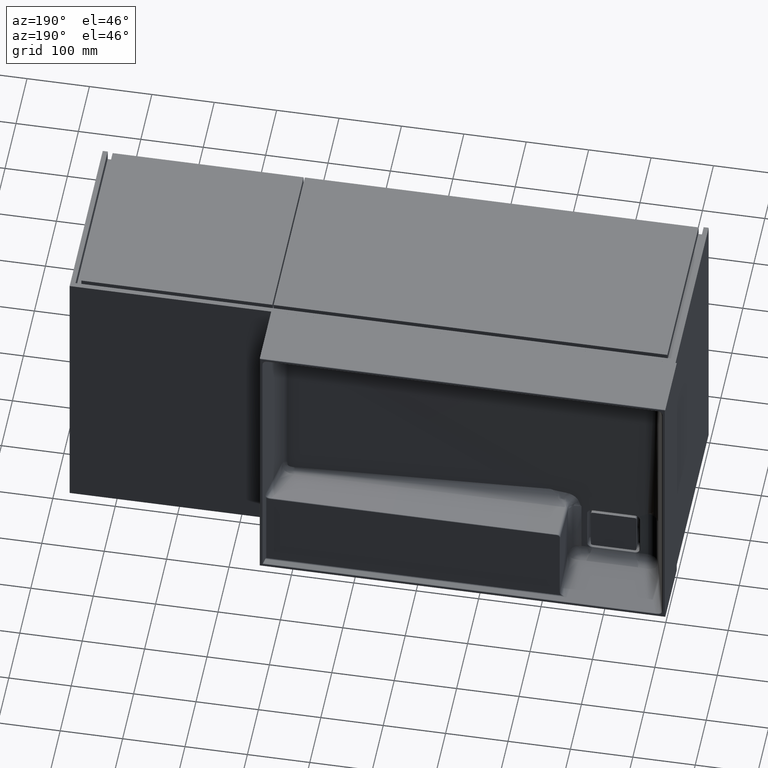
[diagram: clean part render]
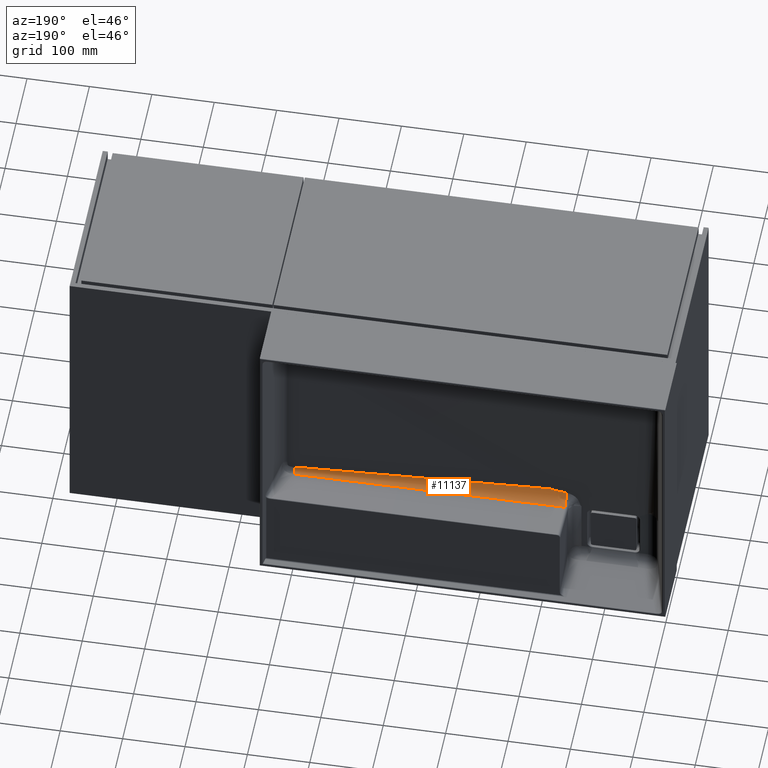
[diagram: same view with one face highlighted and labeled with its STEP entity id]
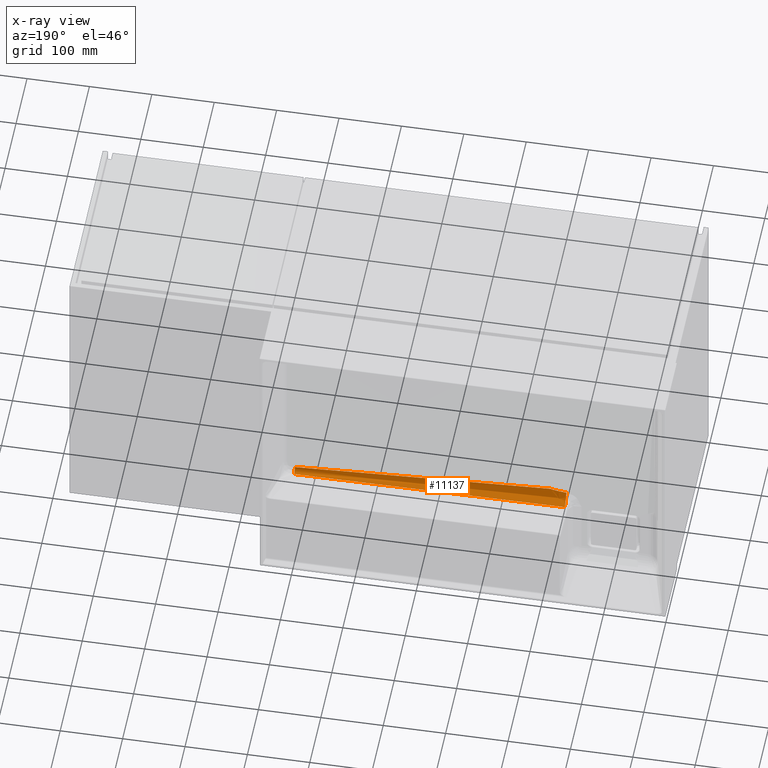
[diagram: x-ray of the same camera — body ghosted, the highlighted face saturated]
A machine part, auxiliary view. The second image highlights one B-rep face of the part: STEP entity #11137.
The next image is the same camera in x-ray: the body ghosted, the highlighted face saturated — about 0% of this face is hidden behind the body in this view.
In plain terms, the highlighted face is a freeform B-spline surface patch.
Its self-contained STEP definition (entity closure, byte-faithful):
#26 = CARTESIAN_POINT ( 'NONE',  ( 471.0608868346715781, 325.2409267287021066, -315.3799392485049111 ) ) ;
#242 = CARTESIAN_POINT ( 'NONE',  ( 173.9812721945681062, 316.6229568114036965, -309.0496244574870843 ) ) ;
#295 = CARTESIAN_POINT ( 'NONE',  ( 198.1148904920749487, 316.8069209751065500, -305.1446317420958394 ) ) ;
#372 = CARTESIAN_POINT ( 'NONE',  ( 178.2644837121267756, 316.6443237527145698, -308.5960700885872825 ) ) ;
#1062 = CARTESIAN_POINT ( 'NONE',  ( 462.3719663152675139, 332.7665495266904259, -323.3703597469260558 ) ) ;
#1161 = VERTEX_POINT ( 'NONE', #6165 ) ;
#1270 = EDGE_LOOP ( 'NONE', ( #13874, #7299, #6183, #10308, #13097 ) ) ;
#1409 = CARTESIAN_POINT ( 'NONE',  ( 317.7278697431762566, 339.0093540719751104, -323.5338333371207113 ) ) ;
#1487 = CARTESIAN_POINT ( 'NONE',  ( 199.0965661181187727, 316.8278122476279464, -304.7011743568679663 ) ) ;
#1568 = CARTESIAN_POINT ( 'NONE',  ( 187.8723330342562576, 316.7024201626882132, -307.3628622008578191 ) ) ;
#2187 = B_SPLINE_CURVE_WITH_KNOTS ( 'NONE', 3,
 ( #5843, #10719, #15583, #4646, #9734, #14591, #3655, #8524, #13395, #2454 ),
 .UNSPECIFIED., .F., .F.,
 ( 4, 2, 2, 2, 4 ),
 ( 0.0000000000000000000, 0.2500000000000000000, 0.5000000000000000000, 0.7500000000000000000, 1.000000000000000000 ),
 .UNSPECIFIED. ) ;
#2264 = CARTESIAN_POINT ( 'NONE',  ( 318.3003675270152826, 320.5153372332214872, -323.0495504626819070 ) ) ;
#2454 = CARTESIAN_POINT ( 'NONE',  ( 606.9319754812725023, 329.4440480074060815, -315.4900018526547569 ) ) ;
#2773 = CARTESIAN_POINT ( 'NONE',  ( 192.1184905281108399, 316.7354091234108182, -306.6626081474768171 ) ) ;
#3464 = CARTESIAN_POINT ( 'NONE',  ( 174.0026961197891637, 316.0515427703932119, -304.4234434570519738 ) ) ;
#3538 = EDGE_CURVE ( 'NONE', #4238, #7180, #3721, .T. ) ;
#3655 = CARTESIAN_POINT ( 'NONE',  ( 606.8985585372917058, 330.4204131196938192, -319.4569766867287512 ) ) ;
#3721 =( BOUNDED_CURVE ( )  B_SPLINE_CURVE ( 2, ( #6315, #11190, #242 ),
 .UNSPECIFIED., .F., .T. ) 
 B_SPLINE_CURVE_WITH_KNOTS ( ( 3, 3 ),
 ( 0.0000000000000000000, 1.000000000000000000 ),
 .UNSPECIFIED. ) 
 CURVE ( )  GEOMETRIC_REPRESENTATION_ITEM ( )  RATIONAL_B_SPLINE_CURVE ( ( 1.000000000000000000, 0.7641457412185801434, 0.9204434452545300349 ) ) 
 REPRESENTATION_ITEM ( '' )  );
#3972 = CARTESIAN_POINT ( 'NONE',  ( 195.2801291537134034, 316.7670150134595133, -305.9917124256157308 ) ) ;
#4211 = EDGE_CURVE ( 'NONE', #4463, #15234, #11944, .T. ) ;
#4238 = VERTEX_POINT ( 'NONE', #10469 ) ;
#4463 = VERTEX_POINT ( 'NONE', #8451 ) ;
#4646 = CARTESIAN_POINT ( 'NONE',  ( 606.8073170552667079, 333.2926610861865697, -322.4068700512899568 ) ) ;
#4671 = CARTESIAN_POINT ( 'NONE',  ( 606.9319754812725023, 329.4440480074060815, -315.4900018526547569 ) ) ;
#4908 = CARTESIAN_POINT ( 'NONE',  ( 335.1974854116677989, 321.0380432513831579, -305.7710013909584745 ) ) ;
#5172 = CARTESIAN_POINT ( 'NONE',  ( 197.3579698442215715, 316.7939460989398981, -305.4200484096354558 ) ) ;
#5249 = CARTESIAN_POINT ( 'NONE',  ( 176.1234516139297455, 316.6333546551162499, -308.8289102535021584 ) ) ;
#5843 = CARTESIAN_POINT ( 'NONE',  ( 606.6846168019388870, 337.2308073616522961, -323.4872604524570079 ) ) ;
#5942 = CARTESIAN_POINT ( 'NONE',  ( 317.7278697431762566, 339.0093540719751104, -323.5338333371207113 ) ) ;
#6165 = CARTESIAN_POINT ( 'NONE',  ( 606.6846168019388870, 337.2308073616522961, -323.4872604524570079 ) ) ;
#6183 = ORIENTED_EDGE ( 'NONE', *, *, #10558, .F. ) ;
#6264 = CARTESIAN_POINT ( 'NONE',  ( 199.3272960926469750, 316.8349497930412326, -304.5496662463542634 ) ) ;
#6291 = CARTESIAN_POINT ( 'NONE',  ( 462.3719663152675139, 332.7665495266904259, -323.3703597469260558 ) ) ;
#6315 = CARTESIAN_POINT ( 'NONE',  ( 173.4152192562205528, 334.5450962275781421, -323.4169326313427746 ) ) ;
#6354 = B_SPLINE_CURVE_WITH_KNOTS ( 'NONE', 3,
 ( #12353, #1409, #6291, #11167 ),
 .UNSPECIFIED., .F., .F.,
 ( 4, 4 ),
 ( -0.4346882425457793686, -0.001543048426497328762 ),
 .UNSPECIFIED. ) ;
#6369 = CARTESIAN_POINT ( 'NONE',  ( 198.8552613548532406, 316.8220531439236538, -304.8234223945266308 ) ) ;
#6447 = CARTESIAN_POINT ( 'NONE',  ( 184.6771654203997741, 316.6808296650964962, -307.8211619812082631 ) ) ;
#7060 = FACE_OUTER_BOUND ( 'NONE', #1270, .T. ) ;
#7140 = CARTESIAN_POINT ( 'NONE',  ( 173.9877170403044886, 316.0510793981751476, -322.9326497571487948 ) ) ;
#7180 = VERTEX_POINT ( 'NONE', #10303 ) ;
#7299 = ORIENTED_EDGE ( 'NONE', *, *, #4211, .F. ) ;
#7637 = CARTESIAN_POINT ( 'NONE',  ( 191.0590375558673202, 316.7265386575339789, -306.8509008232533688 ) ) ;
#8334 = CARTESIAN_POINT ( 'NONE',  ( 606.9256685004368137, 329.4438529033143936, -323.2833518737482450 ) ) ;
#8451 = CARTESIAN_POINT ( 'NONE',  ( 606.9319754812725023, 329.4440480074060815, -315.4900018526547569 ) ) ;
#8524 = CARTESIAN_POINT ( 'NONE',  ( 606.9240862386014896, 329.6451574235028943, -317.5491274639953758 ) ) ;
#8840 = CARTESIAN_POINT ( 'NONE',  ( 194.2290445181043026, 316.7556448546313845, -306.2330658854571084 ) ) ;
#9536 = B_SPLINE_CURVE_WITH_KNOTS ( 'NONE', 3,
 ( #12428, #1487, #6369, #11246, #295, #5172, #10048, #14904, #3972, #8840, #13713, #2773, #7637, #12512, #1568, #6447, #11323, #372, #5249, #10127 ),
 .UNSPECIFIED., .F., .F.,
 ( 4, 2, 2, 2, 2, 2, 2, 2, 2, 4 ),
 ( 0.0000000000000000000, 0.0008055719474762207876, 0.001611143894952441575, 0.003222287789904861467, 0.004833431684857282008, 0.006444575579809702116, 0.009666863369714508505, 0.01288915115961931229, 0.01933372673942890252, 0.02577830231923849275 ),
 .UNSPECIFIED. ) ;
#9540 = CARTESIAN_POINT ( 'NONE',  ( 462.6193249945617367, 324.9797901723597420, -315.3731011471217016 ) ) ;
#9603 = EDGE_CURVE ( 'NONE', #15234, #7180, #9536, .T. ) ;
#9734 = CARTESIAN_POINT ( 'NONE',  ( 606.8344669809556535, 332.4306366061871358, -321.8099686274452438 ) ) ;
#9778 = CARTESIAN_POINT ( 'NONE',  ( 199.3272960926469750, 316.8349497930412326, -304.5496662463542634 ) ) ;
#10048 = CARTESIAN_POINT ( 'NONE',  ( 196.8433714277378783, 316.7865976977785749, -305.5760323383930199 ) ) ;
#10127 = CARTESIAN_POINT ( 'NONE',  ( 173.9812721945681062, 316.6229568114036965, -309.0496244574870843 ) ) ;
#10303 = CARTESIAN_POINT ( 'NONE',  ( 173.9812721945681062, 316.6229568114036965, -309.0496244574870843 ) ) ;
#10308 = ORIENTED_EDGE ( 'NONE', *, *, #13399, .F. ) ;
#10469 = CARTESIAN_POINT ( 'NONE',  ( 173.4152192562205528, 334.5450962275781421, -323.4169326313427746 ) ) ;
#10558 = EDGE_CURVE ( 'NONE', #1161, #4463, #2187, .T. ) ;
#10719 = CARTESIAN_POINT ( 'NONE',  ( 606.7164674865448433, 336.2019001532992775, -323.4603175689986756 ) ) ;
#10813 = CARTESIAN_POINT ( 'NONE',  ( 173.4152192564654058, 334.5450962369286572, -323.4169326315875423 ) ) ;
#10977 = CARTESIAN_POINT ( 'NONE',  ( 606.9319754812725023, 329.4440480074060815, -315.4900018526547569 ) ) ;
#11137 = ADVANCED_FACE ( 'NONE', ( #7060 ), #12005, .T. ) ;
#11167 = CARTESIAN_POINT ( 'NONE',  ( 606.6846168019388870, 337.2308073616522961, -323.4872604524570079 ) ) ;
#11190 = CARTESIAN_POINT ( 'NONE',  ( 173.8613598786187708, 320.1329318382711904, -323.0395368250021306 ) ) ;
#11246 = CARTESIAN_POINT ( 'NONE',  ( 198.3646758481633867, 316.8115746191032258, -305.0458492099912746 ) ) ;
#11323 = CARTESIAN_POINT ( 'NONE',  ( 182.5415527639360960, 316.6680791695546304, -308.0918157390212286 ) ) ;
#11944 = B_SPLINE_CURVE_WITH_KNOTS ( 'NONE', 3,
 ( #10977, #26, #4908, #9778 ),
 .UNSPECIFIED., .F., .F.,
 ( 4, 4 ),
 ( -0.4346882425457793686, -0.02687985659662373017 ),
 .UNSPECIFIED. ) ;
#12005 =( BOUNDED_SURFACE ( )  B_SPLINE_SURFACE ( 2, 3, ( 
 ( #4671, #9540, #14403, #3464 ),
 ( #8334, #13203, #2264, #7140 ),
 ( #12006, #1062, #5942, #10813 ) ),
 .UNSPECIFIED., .F., .F., .F. ) 
 B_SPLINE_SURFACE_WITH_KNOTS ( ( 3, 3 ),
 ( 4, 4 ),
 ( 0.0000000000000000000, 1.000000000000000000 ),
 ( -0.4346882425457793686, -0.001543048426497325726 ),
 .UNSPECIFIED. ) 
 GEOMETRIC_REPRESENTATION_ITEM ( )  RATIONAL_B_SPLINE_SURFACE ( (
 ( 1.000000000000000000, 1.000000000000000000, 1.000000000000000000, 1.000000000000000000),
 ( 0.7162975751252874668, 0.7162975751252874668, 0.7162975751252874668, 0.7162975751252874668),
 ( 1.000000000000000000, 1.000000000000000000, 1.000000000000000000, 1.000000000000000000) ) ) 
 REPRESENTATION_ITEM ( '' )  SURFACE ( )  );
#12006 = CARTESIAN_POINT ( 'NONE',  ( 606.6846168019783363, 337.2308073617368791, -323.4872604524592248 ) ) ;
#12353 = CARTESIAN_POINT ( 'NONE',  ( 173.4152192562205528, 334.5450962275781421, -323.4169326313427746 ) ) ;
#12428 = CARTESIAN_POINT ( 'NONE',  ( 199.3272960926469750, 316.8349497930412326, -304.5496662463542634 ) ) ;
#12512 = CARTESIAN_POINT ( 'NONE',  ( 188.9359916805836122, 316.7100343581347488, -307.2012362778854140 ) ) ;
#13097 = ORIENTED_EDGE ( 'NONE', *, *, #3538, .T. ) ;
#13203 = CARTESIAN_POINT ( 'NONE',  ( 462.6130180137261050, 324.9795950682678836, -323.1664511682150192 ) ) ;
#13395 = CARTESIAN_POINT ( 'NONE',  ( 606.9311421262177646, 329.4440222278793726, -316.5197541206924257 ) ) ;
#13399 = EDGE_CURVE ( 'NONE', #4238, #1161, #6354, .T. ) ;
#13713 = CARTESIAN_POINT ( 'NONE',  ( 193.7021115397277811, 316.7503751772957230, -306.3449249084023336 ) ) ;
#13874 = ORIENTED_EDGE ( 'NONE', *, *, #9603, .F. ) ;
#14403 = CARTESIAN_POINT ( 'NONE',  ( 318.3153466064999861, 320.5158006054395514, -304.5403441625851428 ) ) ;
#14591 = CARTESIAN_POINT ( 'NONE',  ( 606.8800961171953077, 330.9942483443089714, -320.3347505222959057 ) ) ;
#14904 = CARTESIAN_POINT ( 'NONE',  ( 195.8048643806831990, 316.7731144977071267, -305.8622391571529988 ) ) ;
#15234 = VERTEX_POINT ( 'NONE', #6264 ) ;
#15583 = CARTESIAN_POINT ( 'NONE',  ( 606.7483064508010102, 335.1786398577672799, -323.2321963724521652 ) ) ;